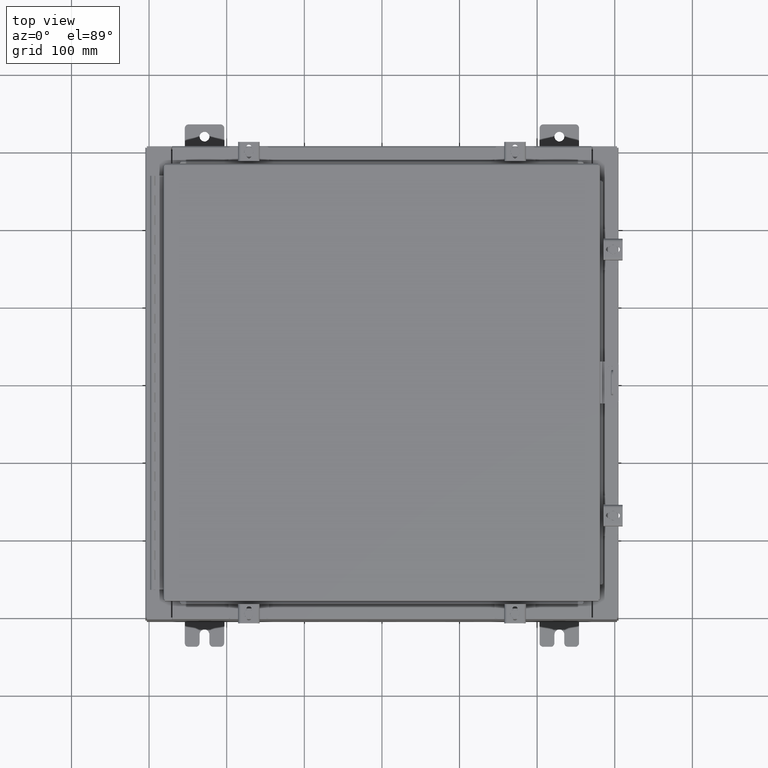
[diagram: clean part render]
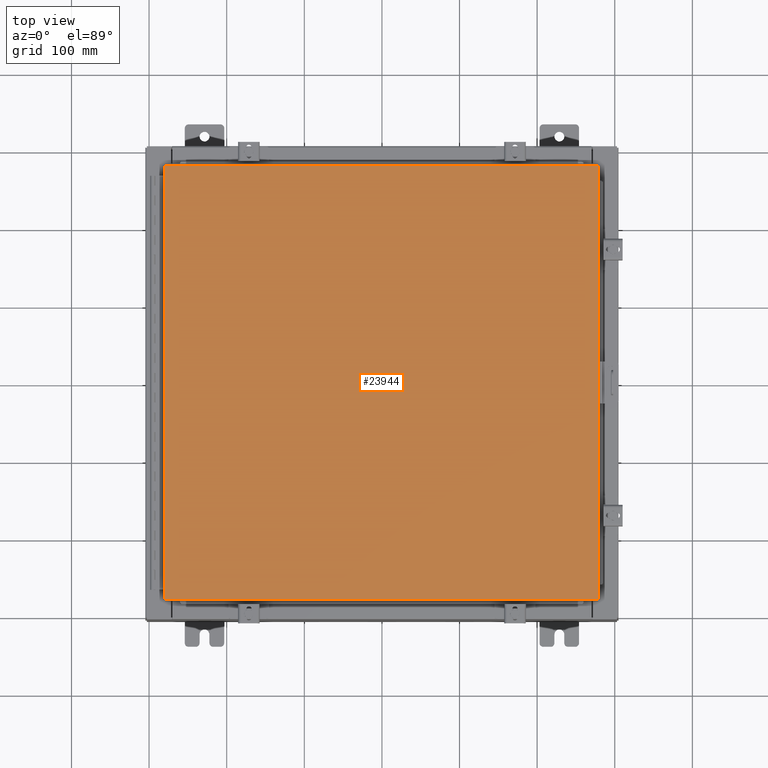
[diagram: same view with one face highlighted and labeled with its STEP entity id]
A machine part, top view. The second image highlights one B-rep face of the part: STEP entity #23944.
In plain terms, the highlighted planar face has unit normal (0, 0, -1).
Its self-contained STEP definition (entity closure, byte-faithful):
#1235 = VECTOR ( 'NONE', #4355, 39.37007874015748100 ) ;
#1852 = CARTESIAN_POINT ( 'NONE',  ( -10.99030000000000500, 11.00629999999999600, -1.092739197465705300E-015 ) ) ;
#2944 = VECTOR ( 'NONE', #28150, 39.37007874015748100 ) ;
#3483 = EDGE_CURVE ( 'NONE', #19413, #30660, #28959, .T. ) ;
#4355 = DIRECTION ( 'NONE',  ( 1.000000000000000000, -0.0000000000000000000, -0.0000000000000000000 ) ) ;
#4882 = FACE_OUTER_BOUND ( 'NONE', #29558, .T. ) ;
#5375 = PLANE ( 'NONE',  #24051 ) ;
#7156 = CARTESIAN_POINT ( 'NONE',  ( 10.99029999999999600, -11.00630000000000100, 0.0000000000000000000 ) ) ;
#7451 = VECTOR ( 'NONE', #16849, 39.37007874015748100 ) ;
#7896 = DIRECTION ( 'NONE',  ( -1.000000000000000000, 0.0000000000000000000, -0.0000000000000000000 ) ) ;
#7926 = CARTESIAN_POINT ( 'NONE',  ( 10.99030000000000000, 11.00629999999999600, 0.0000000000000000000 ) ) ;
#8143 = CARTESIAN_POINT ( 'NONE',  ( 10.99029999999999600, -11.00630000000000100, 0.0000000000000000000 ) ) ;
#9454 = ORIENTED_EDGE ( 'NONE', *, *, #25641, .T. ) ;
#9619 = LINE ( 'NONE', #8143, #2944 ) ;
#10562 = CARTESIAN_POINT ( 'NONE',  ( -10.99030000000000500, 11.00629999999999600, -1.092739197465705300E-015 ) ) ;
#10786 = CARTESIAN_POINT ( 'NONE',  ( 10.99030000000000000, 11.00629999999999600, 0.0000000000000000000 ) ) ;
#11525 = ORIENTED_EDGE ( 'NONE', *, *, #19132, .T. ) ;
#14576 = LINE ( 'NONE', #21894, #1235 ) ;
#16305 = VERTEX_POINT ( 'NONE', #10786 ) ;
#16849 = DIRECTION ( 'NONE',  ( 0.0000000000000000000, -1.000000000000000000, 0.0000000000000000000 ) ) ;
#16897 = EDGE_CURVE ( 'NONE', #30795, #16305, #9619, .T. ) ;
#17829 = CARTESIAN_POINT ( 'NONE',  ( 0.0000000000000000000, 0.0000000000000000000, 0.0000000000000000000 ) ) ;
#19132 = EDGE_CURVE ( 'NONE', #30660, #30795, #14576, .T. ) ;
#19229 = VECTOR ( 'NONE', #20590, 39.37007874015748100 ) ;
#19413 = VERTEX_POINT ( 'NONE', #10562 ) ;
#20590 = DIRECTION ( 'NONE',  ( -1.000000000000000000, -0.0000000000000000000, -0.0000000000000000000 ) ) ;
#21628 = LINE ( 'NONE', #7926, #19229 ) ;
#21894 = CARTESIAN_POINT ( 'NONE',  ( -10.99030000000000000, -11.00630000000000100, 1.092739197465705300E-015 ) ) ;
#22901 = DIRECTION ( 'NONE',  ( 0.0000000000000000000, 0.0000000000000000000, -1.000000000000000000 ) ) ;
#23944 = ADVANCED_FACE ( 'NONE', ( #4882 ), #5375, .F. ) ;
#24051 = AXIS2_PLACEMENT_3D ( 'NONE', #17829, #22901, #7896 ) ;
#24136 = CARTESIAN_POINT ( 'NONE',  ( -10.99030000000000000, -11.00630000000000100, 1.092739197465705300E-015 ) ) ;
#25641 = EDGE_CURVE ( 'NONE', #16305, #19413, #21628, .T. ) ;
#26443 = ORIENTED_EDGE ( 'NONE', *, *, #3483, .T. ) ;
#28150 = DIRECTION ( 'NONE',  ( 0.0000000000000000000, 1.000000000000000000, 0.0000000000000000000 ) ) ;
#28959 = LINE ( 'NONE', #1852, #7451 ) ;
#29558 = EDGE_LOOP ( 'NONE', ( #11525, #29691, #9454, #26443 ) ) ;
#29691 = ORIENTED_EDGE ( 'NONE', *, *, #16897, .T. ) ;
#30660 = VERTEX_POINT ( 'NONE', #24136 ) ;
#30795 = VERTEX_POINT ( 'NONE', #7156 ) ;